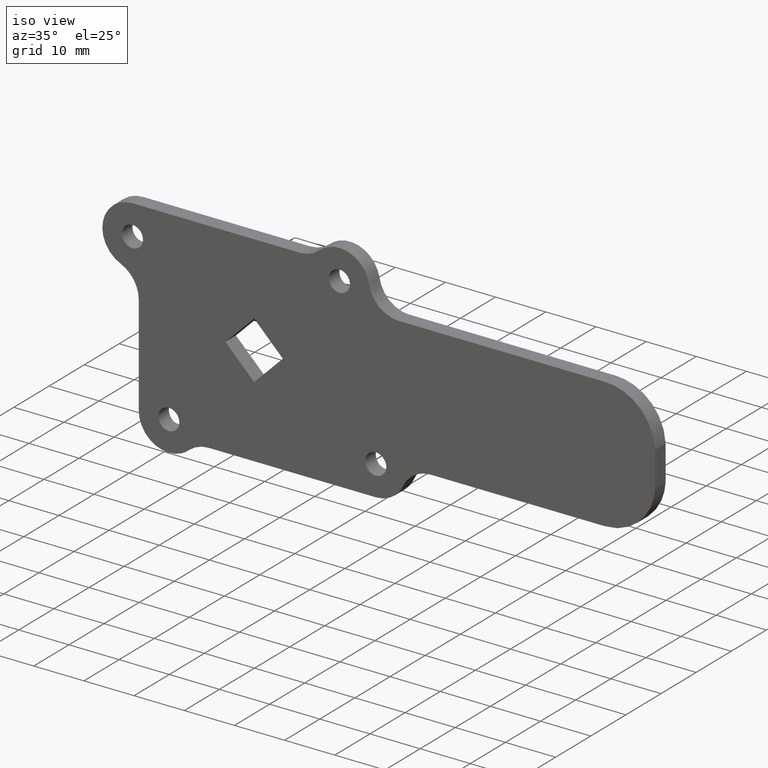
[diagram: clean part render]
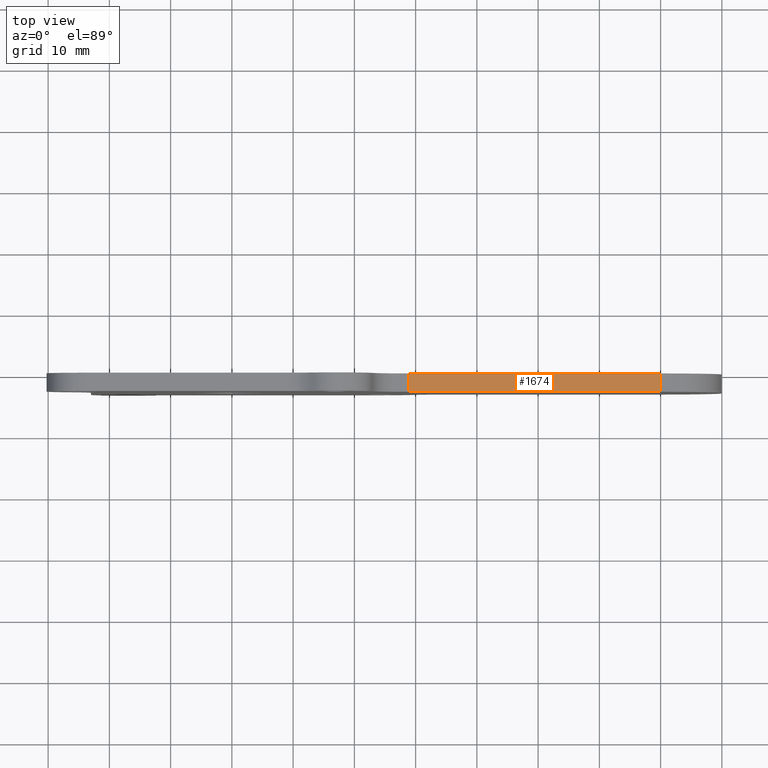
[diagram: tour spotlight — one face highlighted and labeled with its STEP entity id]
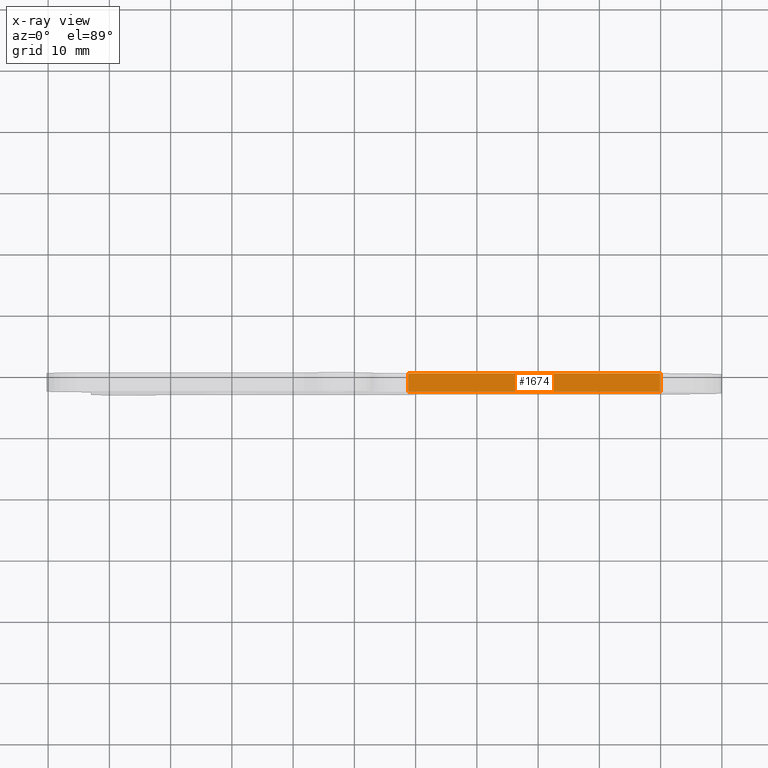
[diagram: x-ray of the same camera — body ghosted, this tour face saturated]
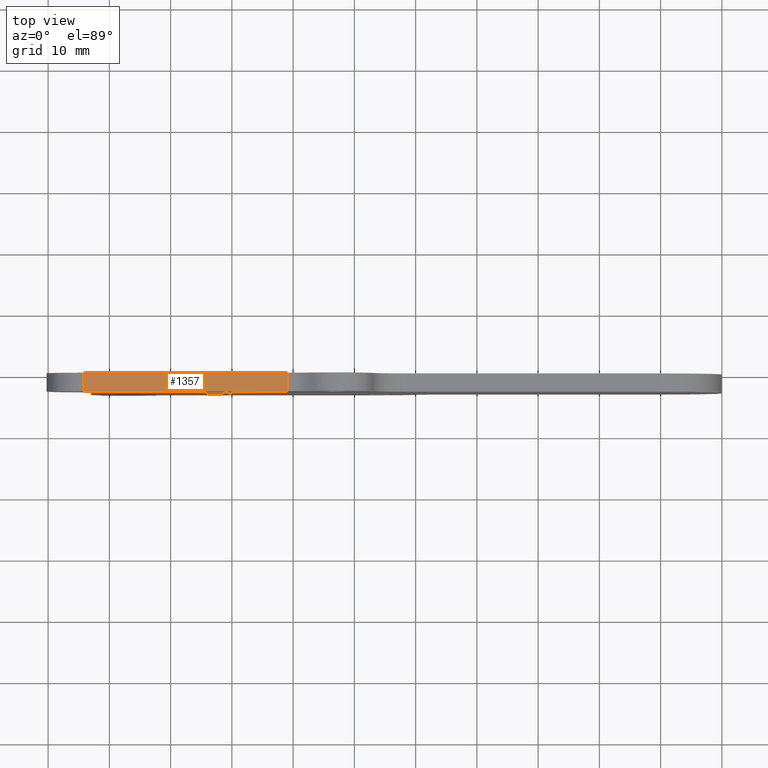
[diagram: tour spotlight — one face highlighted and labeled with its STEP entity id]
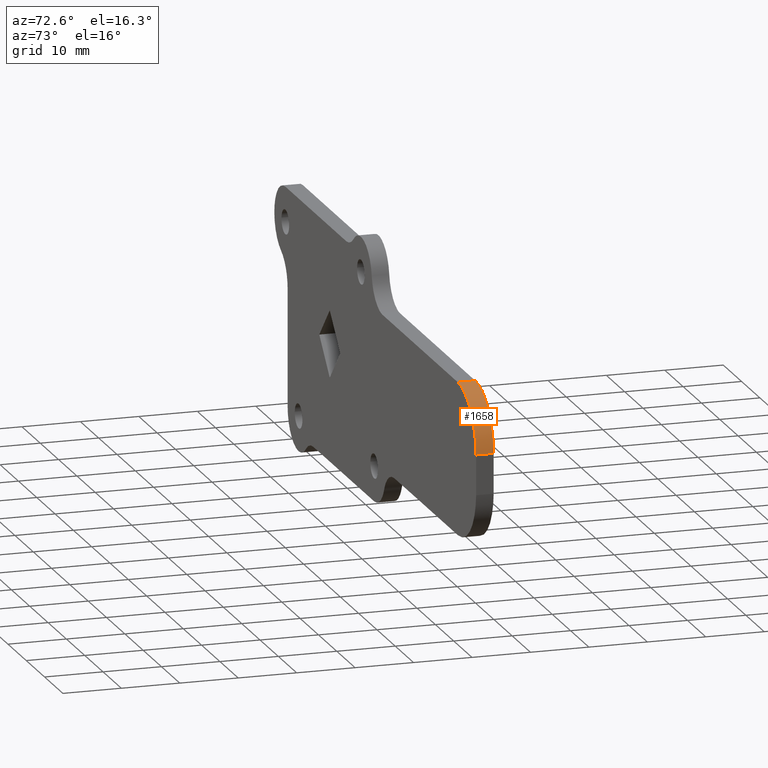
[diagram: tour spotlight — one face highlighted and labeled with its STEP entity id]
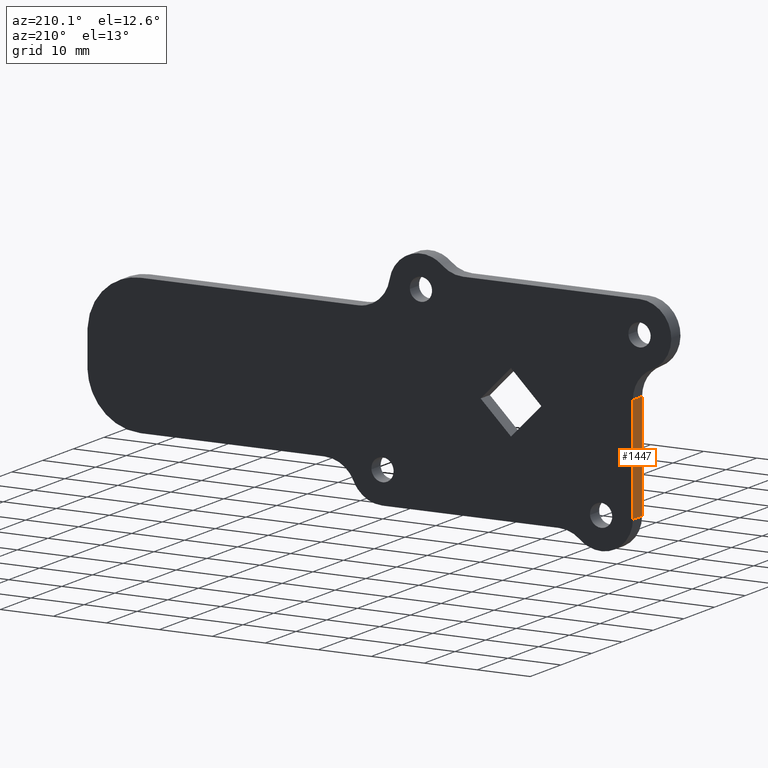
[diagram: tour spotlight — one face highlighted and labeled with its STEP entity id]
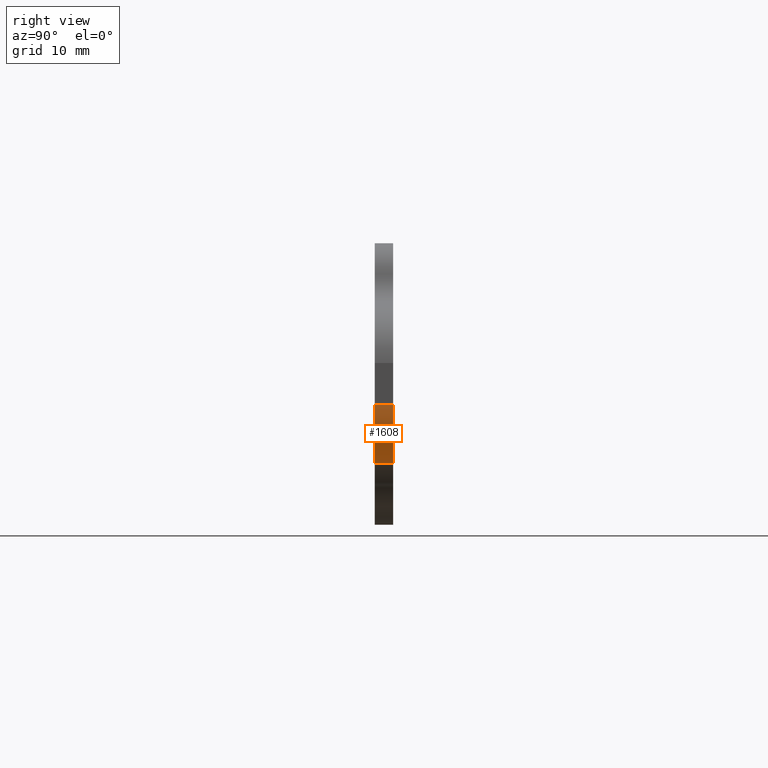
[diagram: tour spotlight — one face highlighted and labeled with its STEP entity id]
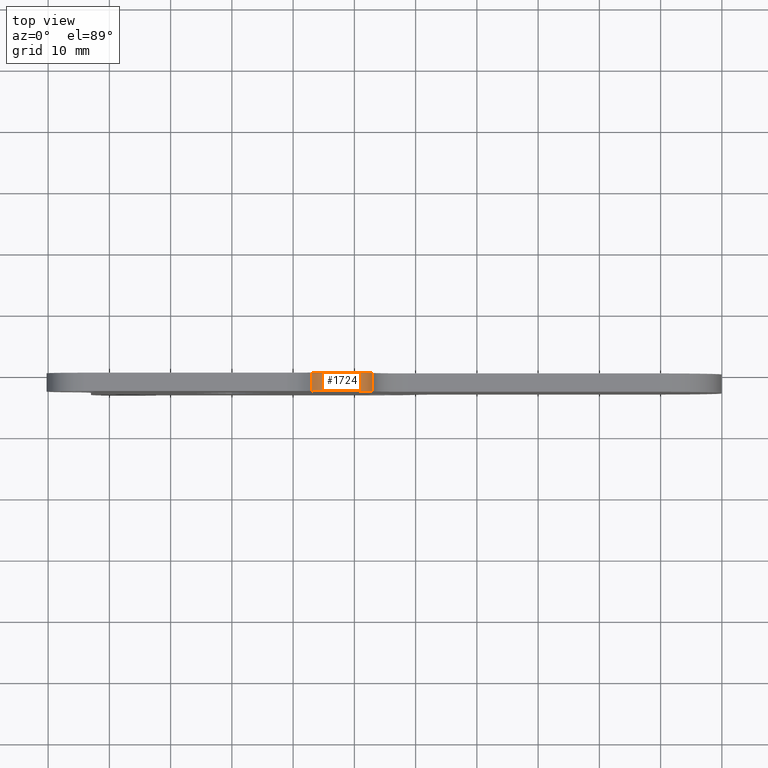
[diagram: tour spotlight — one face highlighted and labeled with its STEP entity id]
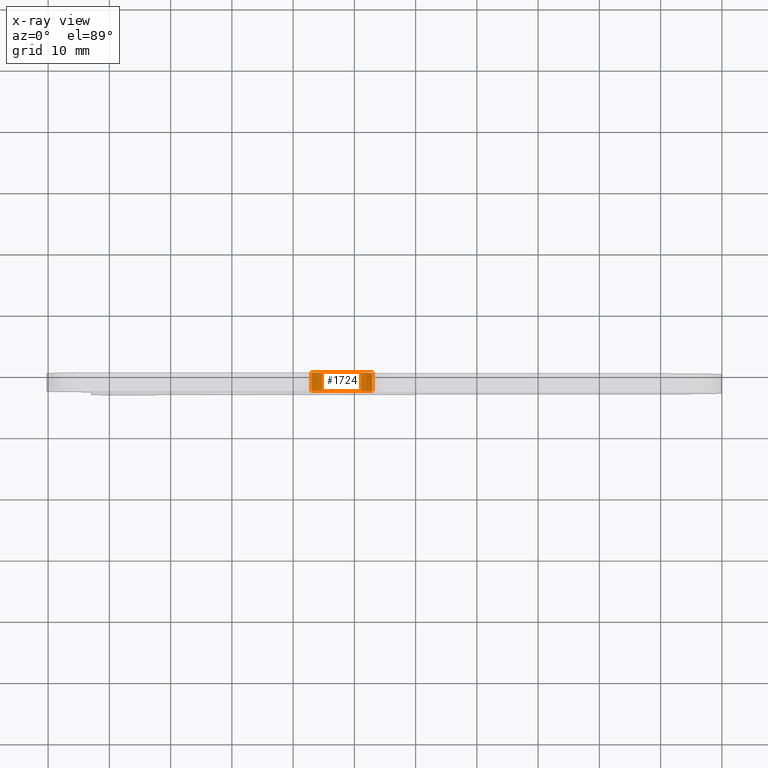
[diagram: x-ray of the same camera — body ghosted, this tour face saturated]
A machine part: a face-by-face anatomy tour. The part has 31 B-rep faces; the first image is the clean iso view, then the 6 largest visible faces are spotlighted one at a time (largest first), each with its STEP entity span.

Face 1 — top view, entity #1674. An x-ray twin of the same camera follows (body ghosted, this face saturated) — the face is partly hidden behind the body. In plain terms, the highlighted face is a freeform B-spline surface patch.
Definition (entity closure, byte-faithful):
#811=CARTESIAN_POINT('',(28.832159490147600,0.0,12.999999938013421));
#812=VERTEX_POINT('',#811);
#826=CARTESIAN_POINT('',(69.935685229771096,0.0,12.999999938013421));
#827=VERTEX_POINT('',#826);
#828=CARTESIAN_POINT('',(28.832159490147600,0.0,12.999999938013421));
#829=CARTESIAN_POINT('',(69.935685229771096,0.0,12.999999938013421));
#830=QUASI_UNIFORM_CURVE('',1,(#828,#829),.UNSPECIFIED.,.F.,.U.);
#831=EDGE_CURVE('',#812,#827,#830,.T.);
#1229=CARTESIAN_POINT('',(69.935685229771096,-3.0,12.999999938013421));
#1230=VERTEX_POINT('',#1229);
#1244=CARTESIAN_POINT('',(28.832159490147600,-3.0,12.999999938013421));
#1245=VERTEX_POINT('',#1244);
#1246=CARTESIAN_POINT('',(28.832159490147600,-3.0,12.999999938013421));
#1247=CARTESIAN_POINT('',(69.935685229771096,-3.0,12.999999938013421));
#1248=QUASI_UNIFORM_CURVE('',1,(#1246,#1247),.UNSPECIFIED.,.F.,.U.);
#1249=EDGE_CURVE('',#1245,#1230,#1248,.T.);
#1649=CARTESIAN_POINT('',(69.935685229771096,-3.0,12.999999938013421));
#1650=CARTESIAN_POINT('',(69.935685229771096,0.0,12.999999938013421));
#1651=QUASI_UNIFORM_CURVE('',1,(#1649,#1650),.UNSPECIFIED.,.F.,.U.);
#1652=EDGE_CURVE('',#1230,#827,#1651,.T.);
#1659=CARTESIAN_POINT('',(26.779037834269712,-3.149849994185419,12.999999938013421));
#1660=CARTESIAN_POINT('',(71.988804313189917,-3.149849994185419,12.999999938013421));
#1661=CARTESIAN_POINT('',(26.779037834269712,0.149850074651688,12.999999938013421));
#1662=CARTESIAN_POINT('',(71.988804313189917,0.149850074651688,12.999999938013421));
#1663=B_SPLINE_SURFACE_WITH_KNOTS('',1,1,((#1659,#1661),(#1660,#1662)),.UNSPECIFIED.,.F.,.F.,.U.,(2,2),(2,2),(0.0,45.209766478920223),(0.0,3.299700068837107),.UNSPECIFIED.);
#1664=ORIENTED_EDGE('',*,*,#831,.F.);
#1665=CARTESIAN_POINT('',(28.832159490147600,-3.0,12.999999938013421));
#1666=CARTESIAN_POINT('',(28.832159490147600,0.0,12.999999938013421));
#1667=QUASI_UNIFORM_CURVE('',1,(#1665,#1666),.UNSPECIFIED.,.F.,.U.);
#1668=EDGE_CURVE('',#1245,#812,#1667,.T.);
#1669=ORIENTED_EDGE('',*,*,#1668,.F.);
#1670=ORIENTED_EDGE('',*,*,#1249,.T.);
#1671=ORIENTED_EDGE('',*,*,#1652,.T.);
#1672=EDGE_LOOP('',(#1664,#1669,#1670,#1671));
#1673=FACE_OUTER_BOUND('',#1672,.T.);
#1674=ADVANCED_FACE('',(#1673),#1663,.T.);

Face 2 — top view, entity #1357. In plain terms, the highlighted face is a freeform B-spline surface patch.
Definition (entity closure, byte-faithful):
#777=CARTESIAN_POINT('',(9.062745999999788,0.0,20.0));
#778=VERTEX_POINT('',#777);
#976=CARTESIAN_POINT('',(-24.250000000000000,0.0,20.0));
#977=VERTEX_POINT('',#976);
#993=CARTESIAN_POINT('',(-24.250000000000000,0.0,20.0));
#994=CARTESIAN_POINT('',(9.062745999999788,0.0,20.0));
#995=QUASI_UNIFORM_CURVE('',1,(#993,#994),.UNSPECIFIED.,.F.,.U.);
#996=EDGE_CURVE('',#977,#778,#995,.T.);
#1060=CARTESIAN_POINT('',(9.062745999999788,-3.0,20.0));
#1061=VERTEX_POINT('',#1060);
#1077=CARTESIAN_POINT('',(-24.250000000000000,-3.0,20.0));
#1078=VERTEX_POINT('',#1077);
#1079=CARTESIAN_POINT('',(-24.250000000000000,-3.0,20.0));
#1080=CARTESIAN_POINT('',(9.062745999999788,-3.0,20.0));
#1081=QUASI_UNIFORM_CURVE('',1,(#1079,#1080),.UNSPECIFIED.,.F.,.U.);
#1082=EDGE_CURVE('',#1078,#1061,#1081,.T.);
#1338=CARTESIAN_POINT('',(-25.913971598133429,-3.149849994185419,20.0));
#1339=CARTESIAN_POINT('',(10.726718491650690,-3.149849994185419,20.0));
#1340=CARTESIAN_POINT('',(-25.913971598133429,0.149850074651688,20.0));
#1341=CARTESIAN_POINT('',(10.726718491650690,0.149850074651688,20.0));
#1342=B_SPLINE_SURFACE_WITH_KNOTS('',1,1,((#1338,#1340),(#1339,#1341)),.UNSPECIFIED.,.F.,.F.,.U.,(2,2),(2,2),(0.0,36.640690089784123),(0.0,3.299700068837106),.UNSPECIFIED.);
#1343=ORIENTED_EDGE('',*,*,#996,.F.);
#1344=CARTESIAN_POINT('',(-24.250000000000000,-3.0,20.0));
#1345=CARTESIAN_POINT('',(-24.250000000000000,0.0,20.0));
#1346=QUASI_UNIFORM_CURVE('',1,(#1344,#1345),.UNSPECIFIED.,.F.,.U.);
#1347=EDGE_CURVE('',#1078,#977,#1346,.T.);
#1348=ORIENTED_EDGE('',*,*,#1347,.F.);
#1349=ORIENTED_EDGE('',*,*,#1082,.T.);
#1350=CARTESIAN_POINT('',(9.062745999999788,-3.0,20.0));
#1351=CARTESIAN_POINT('',(9.062745999999788,0.0,20.0));
#1352=QUASI_UNIFORM_CURVE('',1,(#1350,#1351),.UNSPECIFIED.,.F.,.U.);
#1353=EDGE_CURVE('',#1061,#778,#1352,.T.);
#1354=ORIENTED_EDGE('',*,*,#1353,.T.);
#1355=EDGE_LOOP('',(#1343,#1348,#1349,#1354));
#1356=FACE_OUTER_BOUND('',#1355,.T.);
#1357=ADVANCED_FACE('',(#1356),#1342,.T.);

Face 3 — auxiliary view, entity #1658. In plain terms, the highlighted face is a freeform B-spline surface patch.
Definition (entity closure, byte-faithful):
#826=CARTESIAN_POINT('',(69.935685229771096,0.0,12.999999938013421));
#827=VERTEX_POINT('',#826);
#833=CARTESIAN_POINT('',(79.926497335431591,0.0,3.428571366584855));
#834=VERTEX_POINT('',#833);
#835=CARTESIAN_POINT('',(79.926497335431591,0.0,3.428571366584852));
#836=CARTESIAN_POINT('',(79.515916016020881,0.0,12.999999938013415));
#837=CARTESIAN_POINT('',(69.935685229771096,0.0,12.999999938013421));
#845=(BOUNDED_CURVE()B_SPLINE_CURVE(2,(#835,#836,#837),.UNSPECIFIED.,.F.,.U.)CURVE()GEOMETRIC_REPRESENTATION_ITEM()QUASI_UNIFORM_CURVE()RATIONAL_B_SPLINE_CURVE((1.0,0.722100111777150,1.0))REPRESENTATION_ITEM(''));
#846=EDGE_CURVE('',#834,#827,#845,.T.);
#1214=CARTESIAN_POINT('',(79.926497335431591,-3.0,3.428571366584855));
#1215=VERTEX_POINT('',#1214);
#1229=CARTESIAN_POINT('',(69.935685229771096,-3.0,12.999999938013421));
#1230=VERTEX_POINT('',#1229);
#1231=CARTESIAN_POINT('',(79.926497335431591,-3.0,3.428571366584852));
#1232=CARTESIAN_POINT('',(79.515916016020881,-3.0,12.999999938013415));
#1233=CARTESIAN_POINT('',(69.935685229771096,-3.0,12.999999938013421));
#1241=(BOUNDED_CURVE()B_SPLINE_CURVE(2,(#1231,#1232,#1233),.UNSPECIFIED.,.F.,.U.)CURVE()GEOMETRIC_REPRESENTATION_ITEM()QUASI_UNIFORM_CURVE()RATIONAL_B_SPLINE_CURVE((1.0,0.722100111777150,1.0))REPRESENTATION_ITEM(''));
#1242=EDGE_CURVE('',#1215,#1230,#1241,.T.);
#1624=CARTESIAN_POINT('',(79.926497335431591,-3.0,3.428571366584855));
#1625=CARTESIAN_POINT('',(79.926497335431591,0.0,3.428571366584855));
#1626=QUASI_UNIFORM_CURVE('',1,(#1624,#1625),.UNSPECIFIED.,.F.,.U.);
#1627=EDGE_CURVE('',#1215,#834,#1626,.T.);
#1634=CARTESIAN_POINT('',(79.935304460412809,-3.075000000000000,3.087265292997147));
#1635=CARTESIAN_POINT('',(79.935304460412809,0.076875000000000,3.087265292997147));
#1636=CARTESIAN_POINT('',(79.842635650947045,-3.075000000000002,13.706059078768103));
#1637=CARTESIAN_POINT('',(79.842635650947045,0.076875000000000,13.706059078768103));
#1638=CARTESIAN_POINT('',(69.248537614487148,-3.075000000000000,12.976363411484575));
#1639=CARTESIAN_POINT('',(69.248537614487148,0.076875000000000,12.976363411484575));
#1647=(BOUNDED_SURFACE()B_SPLINE_SURFACE(1,2,((#1634,#1636,#1638),(#1635,#1637,#1639)),.UNSPECIFIED.,.F.,.F.,.U.)B_SPLINE_SURFACE_WITH_KNOTS((2,2),(3,3),(0.0,3.151875000000001),(0.0,17.276413603216479),.UNSPECIFIED.)GEOMETRIC_REPRESENTATION_ITEM()RATIONAL_B_SPLINE_SURFACE(((1.0,0.684118120388944,0.995788739477103),(1.0,0.684118120388944,0.995788739477103)))REPRESENTATION_ITEM('')SURFACE());
#1648=ORIENTED_EDGE('',*,*,#846,.T.);
#1649=CARTESIAN_POINT('',(69.935685229771096,-3.0,12.999999938013421));
#1650=CARTESIAN_POINT('',(69.935685229771096,0.0,12.999999938013421));
#1651=QUASI_UNIFORM_CURVE('',1,(#1649,#1650),.UNSPECIFIED.,.F.,.U.);
#1652=EDGE_CURVE('',#1230,#827,#1651,.T.);
#1653=ORIENTED_EDGE('',*,*,#1652,.F.);
#1654=ORIENTED_EDGE('',*,*,#1242,.F.);
#1655=ORIENTED_EDGE('',*,*,#1627,.T.);
#1656=EDGE_LOOP('',(#1648,#1653,#1654,#1655));
#1657=FACE_OUTER_BOUND('',#1656,.T.);
#1658=ADVANCED_FACE('',(#1657),#1647,.T.);

Face 4 — auxiliary view, entity #1447. In plain terms, the highlighted face is a freeform B-spline surface patch.
Definition (entity closure, byte-faithful):
#937=CARTESIAN_POINT('',(-22.999999987434101,0.0,-17.000000425683702));
#938=VERTEX_POINT('',#937);
#954=CARTESIAN_POINT('',(-22.999999987434101,0.0,2.980131574316295));
#955=VERTEX_POINT('',#954);
#956=CARTESIAN_POINT('',(-22.999999987434101,0.0,-17.000000425683702));
#957=CARTESIAN_POINT('',(-22.999999987434101,0.0,2.980131574316295));
#958=QUASI_UNIFORM_CURVE('',1,(#956,#957),.UNSPECIFIED.,.F.,.U.);
#959=EDGE_CURVE('',#938,#955,#958,.T.);
#1101=CARTESIAN_POINT('',(-22.999999987434101,-3.0,2.980131574316295));
#1102=VERTEX_POINT('',#1101);
#1116=CARTESIAN_POINT('',(-22.999999987434101,-3.0,-17.000000425683702));
#1117=VERTEX_POINT('',#1116);
#1118=CARTESIAN_POINT('',(-22.999999987434101,-3.0,-17.000000425683702));
#1119=CARTESIAN_POINT('',(-22.999999987434101,-3.0,2.980131574316295));
#1120=QUASI_UNIFORM_CURVE('',1,(#1118,#1119),.UNSPECIFIED.,.F.,.U.);
#1121=EDGE_CURVE('',#1117,#1102,#1120,.T.);
#1422=CARTESIAN_POINT('',(-22.999999987434101,-3.0,2.980131574316295));
#1423=CARTESIAN_POINT('',(-22.999999987434101,0.0,2.980131574316295));
#1424=QUASI_UNIFORM_CURVE('',1,(#1422,#1423),.UNSPECIFIED.,.F.,.U.);
#1425=EDGE_CURVE('',#1102,#955,#1424,.T.);
#1432=CARTESIAN_POINT('',(-22.999999987434101,-3.149849994185419,-17.998007605239959));
#1433=CARTESIAN_POINT('',(-22.999999987434101,-3.149849994185419,3.978139647054057));
#1434=CARTESIAN_POINT('',(-22.999999987434101,0.149850074651688,-17.998007605239959));
#1435=CARTESIAN_POINT('',(-22.999999987434101,0.149850074651688,3.978139647054057));
#1436=B_SPLINE_SURFACE_WITH_KNOTS('',1,1,((#1432,#1434),(#1433,#1435)),.UNSPECIFIED.,.F.,.F.,.U.,(2,2),(2,2),(0.0,21.976147252294020),(0.0,3.299700068837107),.UNSPECIFIED.);
#1437=ORIENTED_EDGE('',*,*,#959,.F.);
#1438=CARTESIAN_POINT('',(-22.999999987434101,-3.0,-17.000000425683702));
#1439=CARTESIAN_POINT('',(-22.999999987434101,0.0,-17.000000425683702));
#1440=QUASI_UNIFORM_CURVE('',1,(#1438,#1439),.UNSPECIFIED.,.F.,.U.);
#1441=EDGE_CURVE('',#1117,#938,#1440,.T.);
#1442=ORIENTED_EDGE('',*,*,#1441,.F.);
#1443=ORIENTED_EDGE('',*,*,#1121,.T.);
#1444=ORIENTED_EDGE('',*,*,#1425,.T.);
#1445=EDGE_LOOP('',(#1437,#1442,#1443,#1444));
#1446=FACE_OUTER_BOUND('',#1445,.T.);
#1447=ADVANCED_FACE('',(#1446),#1436,.T.);

Face 5 — right view, entity #1608. In plain terms, the highlighted face is a freeform B-spline surface patch.
Definition (entity closure, byte-faithful):
#848=CARTESIAN_POINT('',(79.926497335431591,0.0,-3.428571490558090));
#849=VERTEX_POINT('',#848);
#863=CARTESIAN_POINT('',(69.935685229771096,0.0,-13.000000061986681));
#864=VERTEX_POINT('',#863);
#865=CARTESIAN_POINT('',(69.935685229771096,0.0,-13.000000061986681));
#866=CARTESIAN_POINT('',(79.515916016020896,0.0,-13.000000061986681));
#867=CARTESIAN_POINT('',(79.926497335431591,0.0,-3.428571490558094));
#875=(BOUNDED_CURVE()B_SPLINE_CURVE(2,(#865,#866,#867),.UNSPECIFIED.,.F.,.U.)CURVE()GEOMETRIC_REPRESENTATION_ITEM()QUASI_UNIFORM_CURVE()RATIONAL_B_SPLINE_CURVE((1.0,0.722100111777149,1.0))REPRESENTATION_ITEM(''));
#876=EDGE_CURVE('',#864,#849,#875,.T.);
#1192=CARTESIAN_POINT('',(69.935685229771096,-3.0,-13.000000061986681));
#1193=VERTEX_POINT('',#1192);
#1199=CARTESIAN_POINT('',(79.926497335431591,-3.0,-3.428571490558090));
#1200=VERTEX_POINT('',#1199);
#1201=CARTESIAN_POINT('',(69.935685229771096,-3.0,-13.000000061986681));
#1202=CARTESIAN_POINT('',(79.515916016020896,-3.000000000000000,-13.000000061986681));
#1203=CARTESIAN_POINT('',(79.926497335431591,-3.0,-3.428571490558094));
#1211=(BOUNDED_CURVE()B_SPLINE_CURVE(2,(#1201,#1202,#1203),.UNSPECIFIED.,.F.,.U.)CURVE()GEOMETRIC_REPRESENTATION_ITEM()QUASI_UNIFORM_CURVE()RATIONAL_B_SPLINE_CURVE((1.0,0.722100111777149,1.0))REPRESENTATION_ITEM(''));
#1212=EDGE_CURVE('',#1193,#1200,#1211,.T.);
#1574=CARTESIAN_POINT('',(69.935685229771096,-3.0,-13.000000061986681));
#1575=CARTESIAN_POINT('',(69.935685229771096,0.0,-13.000000061986681));
#1576=QUASI_UNIFORM_CURVE('',1,(#1574,#1575),.UNSPECIFIED.,.F.,.U.);
#1577=EDGE_CURVE('',#1193,#864,#1576,.T.);
#1584=CARTESIAN_POINT('',(69.594315296384096,-3.075000000000001,-12.994171691920769));
#1585=CARTESIAN_POINT('',(69.594315296384096,0.076875000000000,-12.994171691920769));
#1586=CARTESIAN_POINT('',(80.207323246323625,-3.075000000000001,-13.356679156376877));
#1587=CARTESIAN_POINT('',(80.207323246323625,0.076875000000000,-13.356679156376877));
#1588=CARTESIAN_POINT('',(79.932331731830473,-3.075000000000000,-2.741043090920292));
#1589=CARTESIAN_POINT('',(79.932331731830473,0.076875000000000,-2.741043090920292));
#1597=(BOUNDED_SURFACE()B_SPLINE_SURFACE(1,2,((#1584,#1586,#1588),(#1585,#1587,#1589)),.UNSPECIFIED.,.F.,.F.,.U.)B_SPLINE_SURFACE_WITH_KNOTS((2,2),(3,3),(0.0,3.151875000000001),(0.0,17.276412575311710),.UNSPECIFIED.)GEOMETRIC_REPRESENTATION_ITEM()RATIONAL_B_SPLINE_SURFACE(((1.0,0.684118139136213,0.995788702482436),(1.0,0.684118139136213,0.995788702482436)))REPRESENTATION_ITEM('')SURFACE());
#1598=ORIENTED_EDGE('',*,*,#876,.T.);
#1599=CARTESIAN_POINT('',(79.926497335431591,-3.0,-3.428571490558090));
#1600=CARTESIAN_POINT('',(79.926497335431591,0.0,-3.428571490558090));
#1601=QUASI_UNIFORM_CURVE('',1,(#1599,#1600),.UNSPECIFIED.,.F.,.U.);
#1602=EDGE_CURVE('',#1200,#849,#1601,.T.);
#1603=ORIENTED_EDGE('',*,*,#1602,.F.);
#1604=ORIENTED_EDGE('',*,*,#1212,.F.);
#1605=ORIENTED_EDGE('',*,*,#1577,.T.);
#1606=EDGE_LOOP('',(#1598,#1603,#1604,#1605));
#1607=FACE_OUTER_BOUND('',#1606,.T.);
#1608=ADVANCED_FACE('',(#1607),#1597,.T.);

Face 6 — top view, entity #1724. An x-ray twin of the same camera follows (body ghosted, this face saturated) — the face is partly hidden behind the body. In plain terms, the highlighted face is a freeform B-spline surface patch.
Definition (entity closure, byte-faithful):
#779=CARTESIAN_POINT('',(13.031372958014700,0.0,21.499999992431150));
#780=VERTEX_POINT('',#779);
#794=CARTESIAN_POINT('',(22.916079703088549,0.0,17.999999961437901));
#795=VERTEX_POINT('',#794);
#796=CARTESIAN_POINT('',(22.916079703088531,0.0,17.999999961437890));
#797=CARTESIAN_POINT('',(22.328118228345623,0.0,21.478427039214264));
#798=CARTESIAN_POINT('',(19.002658944565361,0.0,22.655913422621470));
#799=CARTESIAN_POINT('',(15.677199660785096,0.0,23.833399806028670));
#800=CARTESIAN_POINT('',(13.031372958014710,0.0,21.499999992431139));
#808=(BOUNDED_CURVE()B_SPLINE_CURVE(2,(#796,#797,#798,#799,#800),.UNSPECIFIED.,.F.,.U.)B_SPLINE_CURVE_WITH_KNOTS((3,2,3),(0.0,0.500000000000000,1.0),.UNSPECIFIED.)CURVE()GEOMETRIC_REPRESENTATION_ITEM()RATIONAL_B_SPLINE_CURVE((1.0,0.862037346963936,1.0,0.862037346963936,1.0))REPRESENTATION_ITEM(''));
#809=EDGE_CURVE('',#795,#780,#808,.T.);
#1062=CARTESIAN_POINT('',(13.031372958014700,-3.0,21.499999992431150));
#1063=VERTEX_POINT('',#1062);
#1251=CARTESIAN_POINT('',(22.916079703088549,-3.0,17.999999961437901));
#1252=VERTEX_POINT('',#1251);
#1266=CARTESIAN_POINT('',(22.916079703088531,-3.0,17.999999961437890));
#1267=CARTESIAN_POINT('',(22.328118228345623,-3.000000000000000,21.478427039214264));
#1268=CARTESIAN_POINT('',(19.002658944565361,-3.0,22.655913422621470));
#1269=CARTESIAN_POINT('',(15.677199660785096,-3.000000000000000,23.833399806028670));
#1270=CARTESIAN_POINT('',(13.031372958014710,-3.0,21.499999992431139));
#1278=(BOUNDED_CURVE()B_SPLINE_CURVE(2,(#1266,#1267,#1268,#1269,#1270),.UNSPECIFIED.,.F.,.U.)B_SPLINE_CURVE_WITH_KNOTS((3,2,3),(0.0,0.500000000000000,1.0),.UNSPECIFIED.)CURVE()GEOMETRIC_REPRESENTATION_ITEM()RATIONAL_B_SPLINE_CURVE((1.0,0.862037346963936,1.0,0.862037346963936,1.0))REPRESENTATION_ITEM(''));
#1279=EDGE_CURVE('',#1252,#1063,#1278,.T.);
#1690=CARTESIAN_POINT('',(22.916079703088549,-3.0,17.999999961437901));
#1691=CARTESIAN_POINT('',(22.916079703088549,0.0,17.999999961437901));
#1692=QUASI_UNIFORM_CURVE('',1,(#1690,#1691),.UNSPECIFIED.,.F.,.U.);
#1693=EDGE_CURVE('',#1252,#795,#1692,.T.);
#1700=CARTESIAN_POINT('',(22.942918120677991,-3.075000000000001,17.825665300142720));
#1701=CARTESIAN_POINT('',(22.942918120677991,0.076875000000000,17.825665300142720));
#1702=CARTESIAN_POINT('',(21.250053352899990,-3.075000000000001,30.010453325325141));
#1703=CARTESIAN_POINT('',(21.250053352899990,0.076875000000000,30.010453325325141));
#1704=CARTESIAN_POINT('',(12.690540979094850,-3.075000000000001,21.174753111799909));
#1705=CARTESIAN_POINT('',(12.690540979094850,0.076875000000000,21.174753111799909));
#1713=(BOUNDED_SURFACE()B_SPLINE_SURFACE(1,2,((#1700,#1702,#1704),(#1701,#1703,#1705)),.UNSPECIFIED.,.F.,.F.,.U.)B_SPLINE_SURFACE_WITH_KNOTS((2,2),(3,3),(0.0,3.151875000000001),(0.0,14.996864445823860),.UNSPECIFIED.)GEOMETRIC_REPRESENTATION_ITEM()RATIONAL_B_SPLINE_SURFACE(((1.0,0.438371146789078,1.0),(1.0,0.438371146789078,1.0)))REPRESENTATION_ITEM('')SURFACE());
#1714=ORIENTED_EDGE('',*,*,#809,.T.);
#1715=CARTESIAN_POINT('',(13.031372958014700,-3.0,21.499999992431150));
#1716=CARTESIAN_POINT('',(13.031372958014700,0.0,21.499999992431150));
#1717=QUASI_UNIFORM_CURVE('',1,(#1715,#1716),.UNSPECIFIED.,.F.,.U.);
#1718=EDGE_CURVE('',#1063,#780,#1717,.T.);
#1719=ORIENTED_EDGE('',*,*,#1718,.F.);
#1720=ORIENTED_EDGE('',*,*,#1279,.F.);
#1721=ORIENTED_EDGE('',*,*,#1693,.T.);
#1722=EDGE_LOOP('',(#1714,#1719,#1720,#1721));
#1723=FACE_OUTER_BOUND('',#1722,.T.);
#1724=ADVANCED_FACE('',(#1723),#1713,.T.);